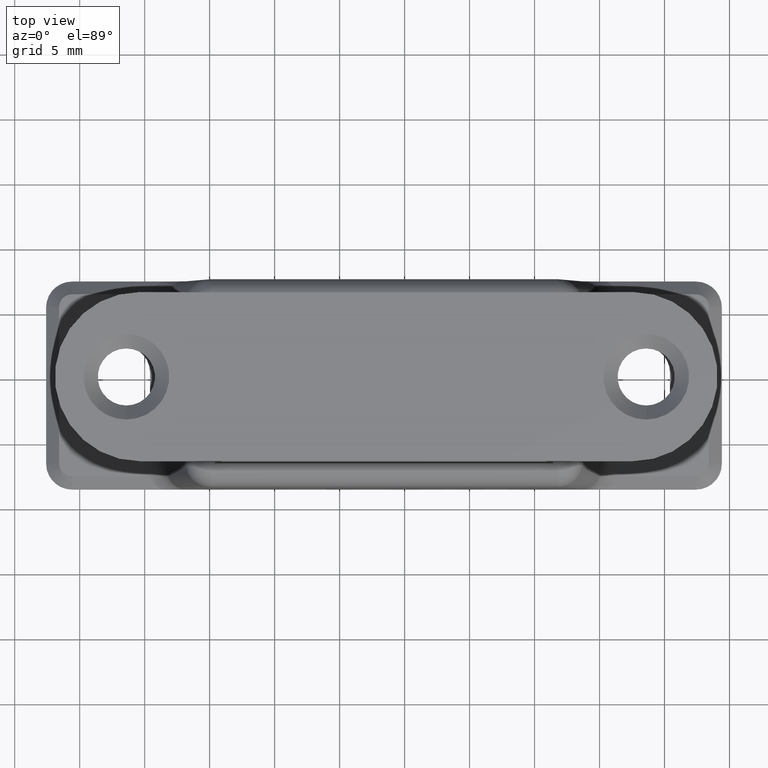
[diagram: clean part render]
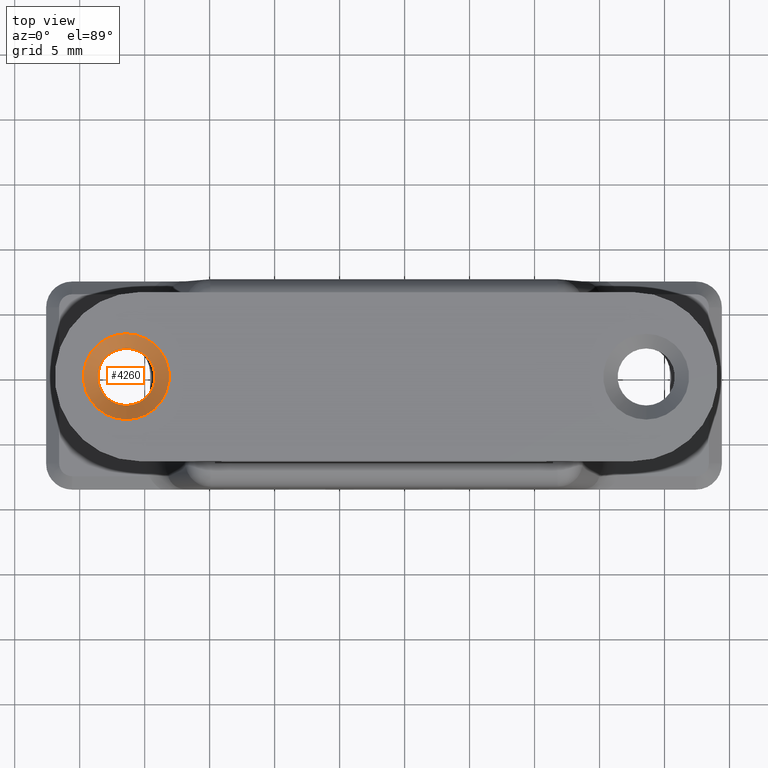
[diagram: same view with one face highlighted and labeled with its STEP entity id]
A machine part, top view. The second image highlights one B-rep face of the part: STEP entity #4260.
In plain terms, the highlighted conical surface has half-angle 45 deg.
Its self-contained STEP definition (entity closure, byte-faithful):
#50=CONICAL_SURFACE('',#4609,2.75,45.);
#157=FACE_BOUND('',#785,.T.);
#305=CIRCLE('',#4610,3.3);
#306=CIRCLE('',#4611,2.2);
#536=FACE_OUTER_BOUND('',#784,.T.);
#784=EDGE_LOOP('',(#3854));
#785=EDGE_LOOP('',(#3855));
#2058=VERTEX_POINT('',#7578);
#2059=VERTEX_POINT('',#7580);
#2660=EDGE_CURVE('',#2058,#2058,#305,.T.);
#2661=EDGE_CURVE('',#2059,#2059,#306,.T.);
#3854=ORIENTED_EDGE('',*,*,#2660,.F.);
#3855=ORIENTED_EDGE('',*,*,#2661,.F.);
#4260=ADVANCED_FACE('',(#536,#157),#50,.F.);
#4609=AXIS2_PLACEMENT_3D('',#7577,#5726,#5727);
#4610=AXIS2_PLACEMENT_3D('',#7579,#5728,#5729);
#4611=AXIS2_PLACEMENT_3D('',#7581,#5730,#5731);
#5726=DIRECTION('center_axis',(0.,1.,0.));
#5727=DIRECTION('ref_axis',(1.,0.,0.));
#5728=DIRECTION('center_axis',(0.,-1.,0.));
#5729=DIRECTION('ref_axis',(1.,0.,0.));
#5730=DIRECTION('center_axis',(0.,1.,0.));
#5731=DIRECTION('ref_axis',(1.,0.,0.));
#7577=CARTESIAN_POINT('Origin',(-2.46519032881566E-30,1.05,20.));
#7578=CARTESIAN_POINT('',(3.3,1.6,20.));
#7579=CARTESIAN_POINT('Origin',(-2.46519032881566E-30,1.6,20.));
#7580=CARTESIAN_POINT('',(2.2,0.5,20.));
#7581=CARTESIAN_POINT('Origin',(-2.46519032881566E-30,0.500000000000006,
20.));